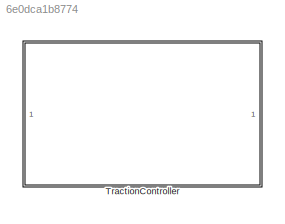
MODEL slx_6e0dca1b8774
KIND library
CONFIG AbsTol = auto
CONFIG EnableMultiTasking = off
CONFIG FixedStep = auto
CONFIG MaxStep = auto
CONFIG MinStep = auto
CONFIG RelTol = 1e-3
CONFIG SampleTimeConstraint = Unconstrained
CONFIG SolverName = VariableStepAuto
CONFIG StartTime = 0.0
CONFIG StopTime = 10.0
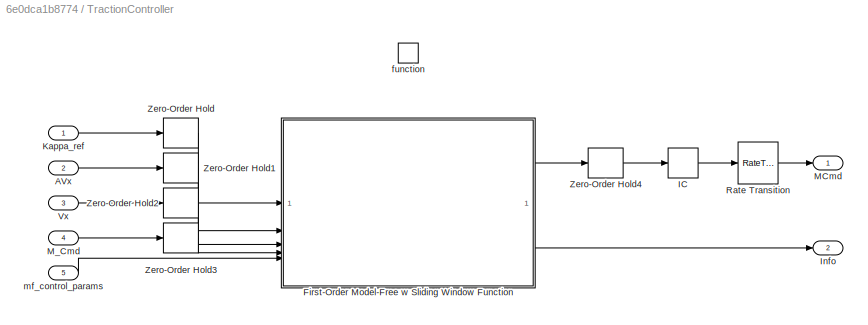
BLOCK [SubSystem] TractionController
BLOCK [Inport] TractionController/AVx
  Port = 2
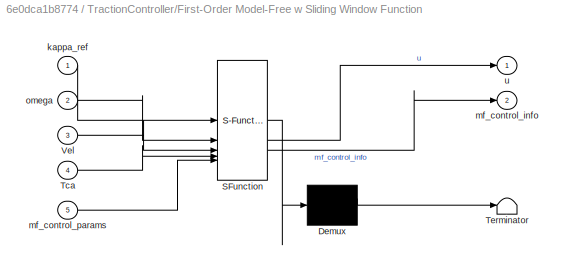
BLOCK [SubSystem] TractionController/First-Order Model-Free w Sliding Window Function
  ErrorFcn = Stateflow.Translate.translate
  PermitHierarchicalResolution = ExplicitOnly
  SFBlockType = MATLAB Function
  TreatAsAtomicUnit = on
  VariantControl = MFC sliding window
BLOCK [Demux] TractionController/First-Order Model-Free w Sliding Window Function/ Demux 
  Outputs = 1
BLOCK [S-Function] TractionController/First-Order Model-Free w Sliding Window Function/ SFunction 
  EnableBusSupport = on
  FunctionName = sf_sfun
  PortCounts = [5 3]
  SFcnIsStateOwnerBlock = off
  SFunctionDeploymentMode = off
  Tag = Stateflow S-Function 4
BLOCK [Terminator] TractionController/First-Order Model-Free w Sliding Window Function/ Terminator 
BLOCK [Inport] TractionController/First-Order Model-Free w Sliding Window Function/Tca
  Port = 4
BLOCK [Inport] TractionController/First-Order Model-Free w Sliding Window Function/Vel
  Port = 3
BLOCK [Inport] TractionController/First-Order Model-Free w Sliding Window Function/kappa_ref
BLOCK [Outport] TractionController/First-Order Model-Free w Sliding Window Function/mf_control_info
  Port = 2
BLOCK [Inport] TractionController/First-Order Model-Free w Sliding Window Function/mf_control_params
  Port = 5
BLOCK [Inport] TractionController/First-Order Model-Free w Sliding Window Function/omega
  Port = 2
BLOCK [Outport] TractionController/First-Order Model-Free w Sliding Window Function/u
BLOCK [InitialCondition] TractionController/IC
  Value = 0
BLOCK [Outport] TractionController/Info
  OutDataTypeStr = Bus: control_info_bus
  Port = 2
BLOCK [Inport] TractionController/Kappa_ref
BLOCK [Outport] TractionController/MCmd
BLOCK [Inport] TractionController/M_Cmd
  Port = 4
BLOCK [RateTransition] TractionController/Rate Transition
BLOCK [Inport] TractionController/Vx
  Port = 3
BLOCK [ZeroOrderHold] TractionController/Zero-Order Hold
  SampleTime = Ts
BLOCK [ZeroOrderHold] TractionController/Zero-Order Hold1
  SampleTime = Ts
BLOCK [ZeroOrderHold] TractionController/Zero-Order Hold2
  SampleTime = Ts
BLOCK [ZeroOrderHold] TractionController/Zero-Order Hold3
  SampleTime = Ts
BLOCK [ZeroOrderHold] TractionController/Zero-Order Hold4
  SampleTime = Ts
BLOCK [TriggerPort] TractionController/function
  StatesWhenEnabling = held
  TriggerType = function-call
  VariantControl = (inherit)
BLOCK [Inport] TractionController/mf_control_params
  Port = 5
LINE TractionController/AVx:1 -> TractionController/Zero-Order Hold1:1
LINE TractionController/First-Order Model-Free w Sliding Window Function:1 -> TractionController/Zero-Order Hold4:1
LINE TractionController/First-Order Model-Free w Sliding Window Function:2 -> TractionController/Info:1
LINE TractionController/IC:1 -> TractionController/Rate Transition:1
LINE TractionController/Kappa_ref:1 -> TractionController/Zero-Order Hold:1
LINE TractionController/M_Cmd:1 -> TractionController/Zero-Order Hold3:1
LINE TractionController/Rate Transition:1 -> TractionController/MCmd:1
LINE TractionController/Vx:1 -> TractionController/Zero-Order Hold2:1
LINE TractionController/Zero-Order Hold1:1 -> TractionController/First-Order Model-Free w Sliding Window Function:2
LINE TractionController/Zero-Order Hold2:1 -> TractionController/First-Order Model-Free w Sliding Window Function:3
LINE TractionController/Zero-Order Hold3:1 -> TractionController/First-Order Model-Free w Sliding Window Function:4
LINE TractionController/Zero-Order Hold4:1 -> TractionController/IC:1
LINE TractionController/Zero-Order Hold:1 -> TractionController/First-Order Model-Free w Sliding Window Function:1
LINE TractionController/mf_control_params:1 -> TractionController/First-Order Model-Free w Sliding Window Function:5
CHART TractionController/First-Order Model-Free w Sliding Window Function states=1 transitions=1
  STATE_LABEL 'eML_blk_kernel()'
  STATE_LABEL 'SCRIPT:\nfunction [u,mf_control_info] = fcn(kappa_ref, omega, Vel, Tca, mf_control_params)\n\n%%% Definition of persistent variables\npersistent u_mem;\npersistent kappa_mem;\npersistent k_ref_ant;\npersistent phi;\npersistent alpha_chap;\npersistent s_y;\npersistent s_u;\n\n%%% Extraction of control parameters\nKp = mf_control_params.Kp;\nTd = mf_control_params.Td;\nTs = mf_control_params.Ts;\nalpha = mf_control...<+1699ch>'
CHART  states=0 transitions=0
